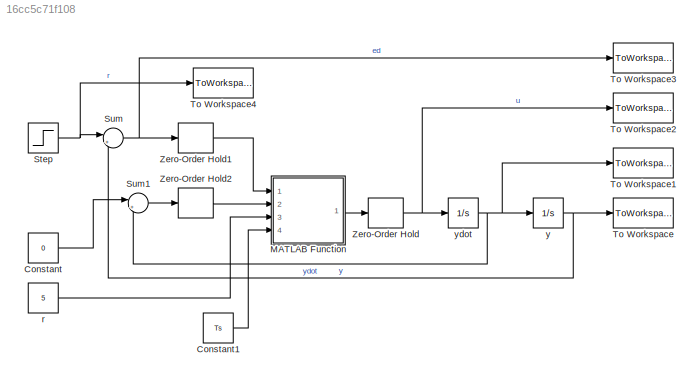
MODEL slx_16cc5c71f108
KIND model
CONFIG AbsTol = auto
CONFIG FixedStep = auto
CONFIG MaxStep = auto
CONFIG MinStep = auto
CONFIG RelTol = 1e-3
CONFIG SampleTimeConstraint = Unconstrained
CONFIG Solver = VariableStepAuto
CONFIG SolverMode = Auto
CONFIG SolverName = VariableStepAuto
CONFIG StartTime = 0.0
CONFIG StopTime = 4.0
BLOCK [Constant] Constant
  Value = 0
BLOCK [Constant] Constant1
  Value = Ts
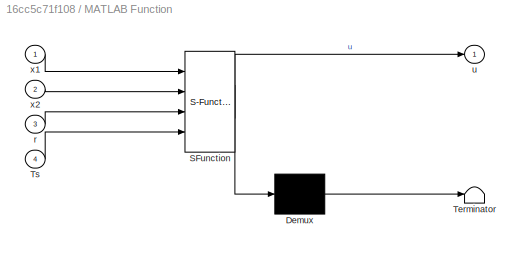
BLOCK [SubSystem] MATLAB Function
  ErrorFcn = Stateflow.Translate.translate
  PermitHierarchicalResolution = ExplicitOnly
  Ports = [4, 1]
  RequestExecContextInheritance = off
  SFBlockType = MATLAB Function
  TreatAsAtomicUnit = on
  Variant = off
BLOCK [Demux] MATLAB Function/ Demux 
  Outputs = 1
  Ports = [1, 1]
BLOCK [S-Function] MATLAB Function/ SFunction 
  EnableBusSupport = on
  FunctionName = sf_sfun
  PortCounts = [4 2]
  Ports = [4, 2]
  SFunctionDeploymentMode = off
  Tag = Stateflow S-Function toctest 2
BLOCK [Terminator] MATLAB Function/ Terminator 
BLOCK [Inport] MATLAB Function/Ts
  IconDisplay = Port number
  Port = 4
BLOCK [Inport] MATLAB Function/r
  IconDisplay = Port number
  Port = 3
BLOCK [Outport] MATLAB Function/u
  IconDisplay = Port number
BLOCK [Inport] MATLAB Function/x1
  IconDisplay = Port number
BLOCK [Inport] MATLAB Function/x2
  IconDisplay = Port number
  Port = 2
BLOCK [Step] Step
  SampleTime = 0
  Time = 2
BLOCK [Sum] Sum
  IconShape = round
  InputSameDT = off
  Inputs = |+-
  OutDataTypeStr = Inherit: Inherit via internal rule
  Ports = [2, 1]
  SaturateOnIntegerOverflow = off
BLOCK [Sum] Sum1
  IconShape = round
  InputSameDT = off
  Inputs = |+-
  OutDataTypeStr = Inherit: Inherit via internal rule
  Ports = [2, 1]
  SaturateOnIntegerOverflow = off
BLOCK [ToWorkspace] To Workspace
  FixptAsFi = on
  MaxDataPoints = inf
  Ports = [1]
  SampleTime = -1
  Save2DSignal = 3-D array (concatenate along third dimension)
  VariableName = y
BLOCK [ToWorkspace] To Workspace1
  FixptAsFi = on
  MaxDataPoints = inf
  Ports = [1]
  SampleTime = -1
  Save2DSignal = 3-D array (concatenate along third dimension)
  VariableName = yd
BLOCK [ToWorkspace] To Workspace2
  FixptAsFi = on
  MaxDataPoints = inf
  Ports = [1]
  SampleTime = -1
  Save2DSignal = 3-D array (concatenate along third dimension)
  VariableName = u
BLOCK [ToWorkspace] To Workspace3
  FixptAsFi = on
  MaxDataPoints = inf
  Ports = [1]
  SampleTime = -1
  Save2DSignal = 3-D array (concatenate along third dimension)
  VariableName = ed
BLOCK [ToWorkspace] To Workspace4
  FixptAsFi = on
  MaxDataPoints = inf
  Ports = [1]
  SampleTime = -1
  Save2DSignal = 3-D array (concatenate along third dimension)
  VariableName = r
BLOCK [ZeroOrderHold] Zero-Order Hold
  SampleTime = Ts
BLOCK [ZeroOrderHold] Zero-Order Hold1
  SampleTime = Ts
BLOCK [ZeroOrderHold] Zero-Order Hold2
  SampleTime = Ts
BLOCK [Constant] r
  Value = 5
BLOCK [Integrator] y
  Ports = [1, 1]
BLOCK [Integrator] ydot
  Ports = [1, 1]
LINE Constant1:1 -> MATLAB Function:4
LINE Constant:1 -> Sum1:1
LINE MATLAB Function:1 -> Zero-Order Hold:1
NET Step:1 -> Sum:1, To Workspace4:1
LINE Sum1:1 -> Zero-Order Hold2:1
NET Sum:1 -> To Workspace3:1, Zero-Order Hold1:1
LINE Zero-Order Hold1:1 -> MATLAB Function:1
LINE Zero-Order Hold2:1 -> MATLAB Function:2
NET Zero-Order Hold:1 -> To Workspace2:1, ydot:1
LINE r:1 -> MATLAB Function:3
NET y:1 -> Sum:2, To Workspace:1
NET ydot:1 -> Sum1:2, To Workspace1:1, y:1
note: NET lines group one-source signal fan-out (src -> all destinations, sorted); 1:1 wires keep LINE
CHART MATLAB Function states=1 transitions=1
  STATE_LABEL 'eML_blk_kernel()'
  STATE_LABEL 'SCRIPT:\nfunction u = tod(x1,x2,r,Ts)\n%#codegen\nd = Ts*r;\nd0= Ts*d;\ny = x1+Ts*x2;\nya=abs(y);\na0= sqrt(d^2 + 8*r*ya);\nif (ya > d0),\n    a = x2 + (a0-d)/2*sign(y);\nelse\n    a = x2 + y/Ts;\nend\naa = abs(a);\nif (aa > d),\n    fst = r*sign(a);\nelse\n    fst = r*a/d;\nend\n   \nu = fst;'
